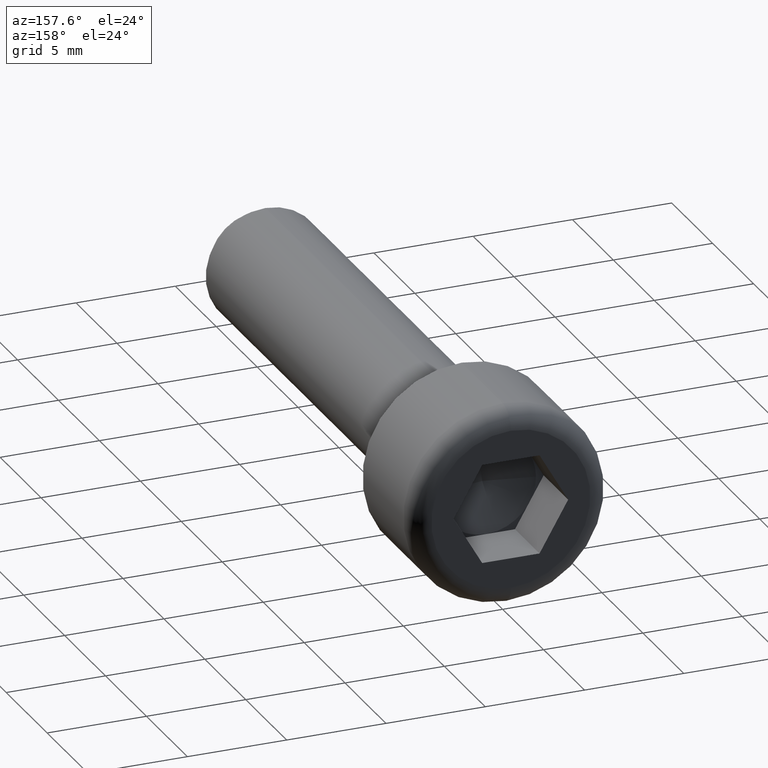
[diagram: clean part render]
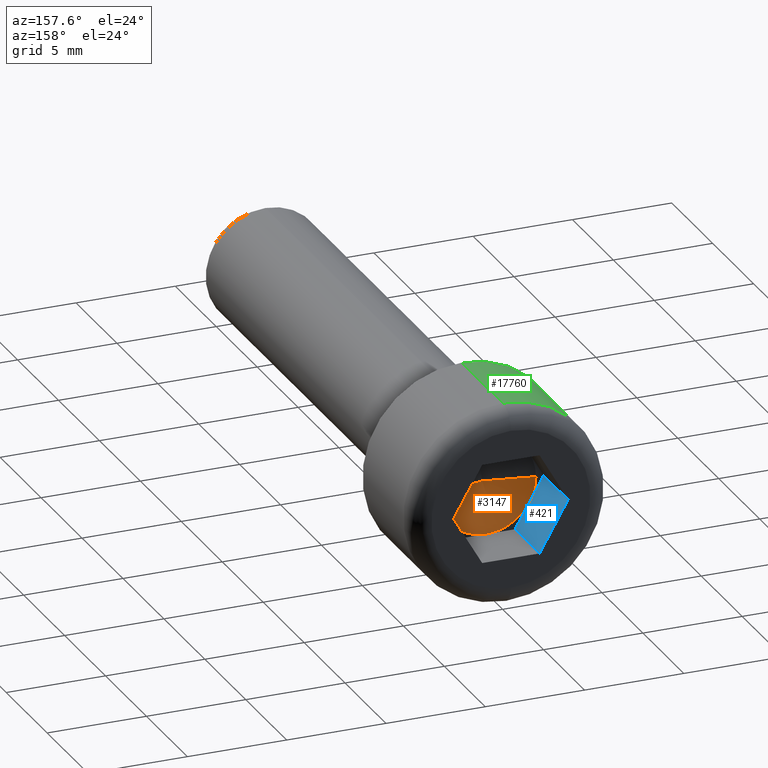
[diagram: same view with three faces highlighted in distinct colors, each labeled with its STEP entity id]
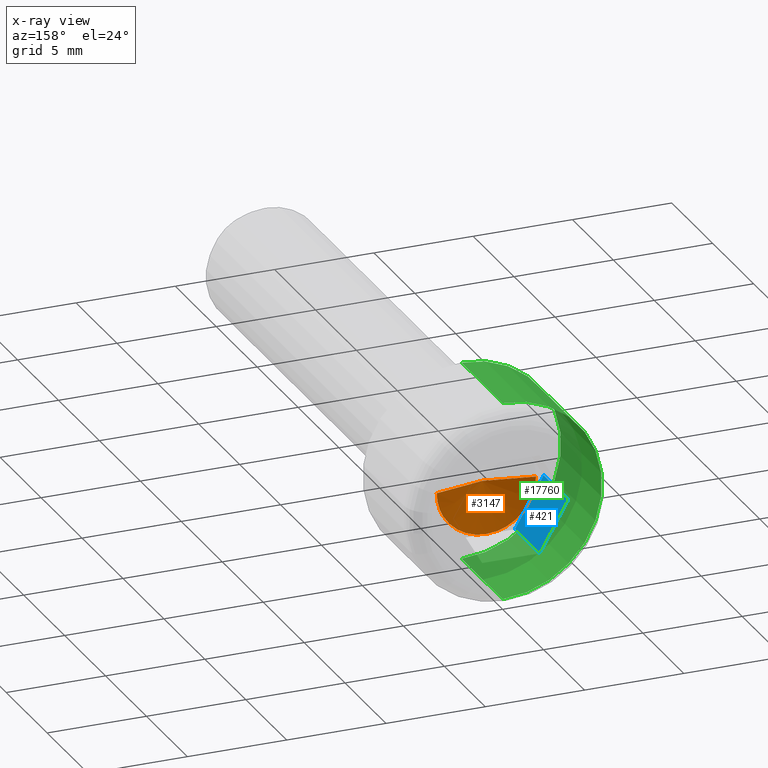
[diagram: x-ray of the same camera — body ghosted, the three highlighted faces saturated]
A machine part, auxiliary view with three faces highlighted in distinct colors.
The next image is the same camera in x-ray (body ghosted, the three faces saturated) — at least one of them is partly hidden behind the body in this view.
Their STEP definitions:

[orange] entity #3147 — the highlighted conical surface has half-angle 78.69 deg.
#66 = ORIENTED_EDGE ( 'NONE', *, *, #13444, .T. ) ;
#1119 = CARTESIAN_POINT ( 'NONE',  ( 2.165063509461096380, 3.000000000000000000, -1.250000000000000444 ) ) ;
#1279 = CARTESIAN_POINT ( 'NONE',  ( -1.224646799147352996E-13, 1002.500000000000000, 0.000000000000000000 ) ) ;
#1420 = DIRECTION ( 'NONE',  ( -1.224646799147352961E-16, 1.000000000000000000, -0.000000000000000000 ) ) ;
#2135 = VECTOR ( 'NONE', #18549, 1000.000000000000000 ) ;
#2685 = CARTESIAN_POINT ( 'NONE',  ( 0.000000000000000000, 2.500000000000000000, 0.000000000000000000 ) ) ;
#2818 = CARTESIAN_POINT ( 'NONE',  ( -4.368109896416574305E-16, 2.999999999999999556, -2.500000000000000000 ) ) ;
#3147 = ADVANCED_FACE ( 'NONE', ( #15766 ), #17775, .F. ) ;
#3183 = DIRECTION ( 'NONE',  ( -1.000000000000000000, -1.734723475976807094E-16, 0.000000000000000000 ) ) ;
#3557 = ORIENTED_EDGE ( 'NONE', *, *, #3835, .T. ) ;
#3678 = CARTESIAN_POINT ( 'NONE',  ( -2.165063509461097713, 2.999999999999999112, -1.250000000000000444 ) ) ;
#3835 = EDGE_CURVE ( 'NONE', #12542, #17595, #4035, .T. ) ;
#4035 = CIRCLE ( 'NONE', #4114, 2.500000000000000000 ) ;
#4114 = AXIS2_PLACEMENT_3D ( 'NONE', #10122, #1420, #7097 ) ;
#4938 = CARTESIAN_POINT ( 'NONE',  ( -2.500000000000001332, 2.999999999999999112, 0.000000000000000000 ) ) ;
#5240 = VERTEX_POINT ( 'NONE', #10659 ) ;
#6123 = AXIS2_PLACEMENT_3D ( 'NONE', #10551, #11952, #6132 ) ;
#6132 = DIRECTION ( 'NONE',  ( -1.000000000000000000, -1.734723475976807094E-16, 0.000000000000000000 ) ) ;
#6299 = ORIENTED_EDGE ( 'NONE', *, *, #10075, .F. ) ;
#7097 = DIRECTION ( 'NONE',  ( -1.000000000000000000, -1.734723475976807094E-16, 0.000000000000000000 ) ) ;
#7351 = ORIENTED_EDGE ( 'NONE', *, *, #11517, .T. ) ;
#7576 = VERTEX_POINT ( 'NONE', #2818 ) ;
#7799 = ORIENTED_EDGE ( 'NONE', *, *, #11990, .T. ) ;
#8893 = DIRECTION ( 'NONE',  ( -1.000000000000000000, -1.734723475976807094E-16, 0.000000000000000000 ) ) ;
#8941 = CARTESIAN_POINT ( 'NONE',  ( -6.123233995736761105E-17, 2.999999999999999556, 0.000000000000000000 ) ) ;
#9187 = VERTEX_POINT ( 'NONE', #4938 ) ;
#9872 = CIRCLE ( 'NONE', #6123, 2.500000000000000000 ) ;
#10043 = DIRECTION ( 'NONE',  ( -1.000000000000000000, -1.332267629550186074E-16, 0.000000000000000000 ) ) ;
#10061 = CIRCLE ( 'NONE', #15973, 2.500000000000000000 ) ;
#10075 = EDGE_CURVE ( 'NONE', #5240, #9187, #18127, .T. ) ;
#10076 = EDGE_LOOP ( 'NONE', ( #6299, #66, #3557, #11514, #7799, #7351 ) ) ;
#10122 = CARTESIAN_POINT ( 'NONE',  ( -6.123233995736761105E-17, 2.999999999999999556, 0.000000000000000000 ) ) ;
#10551 = CARTESIAN_POINT ( 'NONE',  ( -6.123233995736761105E-17, 2.999999999999999556, 0.000000000000000000 ) ) ;
#10659 = CARTESIAN_POINT ( 'NONE',  ( 0.000000000000000000, 2.500000000000000000, 0.000000000000000000 ) ) ;
#11514 = ORIENTED_EDGE ( 'NONE', *, *, #13341, .T. ) ;
#11517 = EDGE_CURVE ( 'NONE', #13595, #9187, #10061, .T. ) ;
#11739 = DIRECTION ( 'NONE',  ( -1.224646799147352961E-16, 1.000000000000000000, -0.000000000000000000 ) ) ;
#11952 = DIRECTION ( 'NONE',  ( -1.224646799147352961E-16, 1.000000000000000000, -0.000000000000000000 ) ) ;
#11990 = EDGE_CURVE ( 'NONE', #7576, #13595, #17343, .T. ) ;
#12032 = DIRECTION ( 'NONE',  ( -1.224646799147352961E-16, 1.000000000000000000, -0.000000000000000000 ) ) ;
#12390 = AXIS2_PLACEMENT_3D ( 'NONE', #8941, #12032, #3183 ) ;
#12542 = VERTEX_POINT ( 'NONE', #17172 ) ;
#13341 = EDGE_CURVE ( 'NONE', #17595, #7576, #9872, .T. ) ;
#13399 = CARTESIAN_POINT ( 'NONE',  ( 0.000000000000000000, 2.500000000000000000, 0.000000000000000000 ) ) ;
#13444 = EDGE_CURVE ( 'NONE', #5240, #12542, #14140, .T. ) ;
#13595 = VERTEX_POINT ( 'NONE', #3678 ) ;
#14140 = LINE ( 'NONE', #13399, #15009 ) ;
#15009 = VECTOR ( 'NONE', #17440, 1000.000000000000000 ) ;
#15766 = FACE_OUTER_BOUND ( 'NONE', #10076, .T. ) ;
#15973 = AXIS2_PLACEMENT_3D ( 'NONE', #17488, #11739, #8893 ) ;
#17172 = CARTESIAN_POINT ( 'NONE',  ( 2.500000000000001332, 3.000000000000000000, 3.061616997868384620E-16 ) ) ;
#17185 = DIRECTION ( 'NONE',  ( -1.224646799147352961E-16, 1.000000000000000000, -0.000000000000000000 ) ) ;
#17343 = CIRCLE ( 'NONE', #12390, 2.500000000000000000 ) ;
#17440 = DIRECTION ( 'NONE',  ( 0.9805806756909202226, 0.1961161351381839058, 1.200864985790634159E-16 ) ) ;
#17488 = CARTESIAN_POINT ( 'NONE',  ( -6.123233995736761105E-17, 2.999999999999999556, 0.000000000000000000 ) ) ;
#17595 = VERTEX_POINT ( 'NONE', #1119 ) ;
#17775 = CONICAL_SURFACE ( 'NONE', #18331, 5000.000000000006366, 1.373400766945016116 ) ;
#18127 = LINE ( 'NONE', #2685, #2135 ) ;
#18331 = AXIS2_PLACEMENT_3D ( 'NONE', #1279, #17185, #10043 ) ;
#18549 = DIRECTION ( 'NONE',  ( -0.9805806756909202226, 0.1961161351381836837, 0.000000000000000000 ) ) ;

[blue] entity #421 — the highlighted planar face has unit normal (-0.866, 0, -0.5).
#269 = EDGE_CURVE ( 'NONE', #15814, #13543, #11811, .T. ) ;
#421 = ADVANCED_FACE ( 'NONE', ( #11570 ), #5483, .F. ) ;
#667 = VECTOR ( 'NONE', #15610, 1000.000000000000000 ) ;
#1666 = EDGE_CURVE ( 'NONE', #13595, #5684, #13994, .T. ) ;
#1789 = CARTESIAN_POINT ( 'NONE',  ( -1.443375672974064772, 3.000000000000000000, -2.500000000000000000 ) ) ;
#2614 = CARTESIAN_POINT ( 'NONE',  ( -1.443375672974064772, 3.000000000000000000, -2.500000000000000000 ) ) ;
#3009 = DIRECTION ( 'NONE',  ( -0.5000000000000001110, 0.000000000000000000, 0.8660254037844387076 ) ) ;
#3489 = EDGE_CURVE ( 'NONE', #6595, #15814, #15070, .T. ) ;
#3678 = CARTESIAN_POINT ( 'NONE',  ( -2.165063509461097713, 2.999999999999999112, -1.250000000000000444 ) ) ;
#4222 = VECTOR ( 'NONE', #3009, 999.9999999999998863 ) ;
#4326 = CARTESIAN_POINT ( 'NONE',  ( -1.443375672974064772, 3.000000000000000000, -2.500000000000000000 ) ) ;
#4537 = ORIENTED_EDGE ( 'NONE', *, *, #269, .T. ) ;
#4548 = ORIENTED_EDGE ( 'NONE', *, *, #1666, .F. ) ;
#5417 = CARTESIAN_POINT ( 'NONE',  ( -1.443375672974064772, 3.000000000000000000, -2.500000000000000000 ) ) ;
#5483 = PLANE ( 'NONE',  #12208 ) ;
#5684 = VERTEX_POINT ( 'NONE', #16114 ) ;
#5776 = CARTESIAN_POINT ( 'NONE',  ( -1.443375672974064772, 3.000000000000000000, -2.500000000000000000 ) ) ;
#6165 = EDGE_CURVE ( 'NONE', #5684, #13543, #8328, .T. ) ;
#6595 = VERTEX_POINT ( 'NONE', #5776 ) ;
#7620 = EDGE_CURVE ( 'NONE', #6595, #13595, #14822, .T. ) ;
#8328 = LINE ( 'NONE', #18626, #667 ) ;
#8504 = DIRECTION ( 'NONE',  ( -0.000000000000000000, 1.000000000000000000, -0.000000000000000000 ) ) ;
#8929 = DIRECTION ( 'NONE',  ( -0.5000000000000001110, 0.000000000000000000, 0.8660254037844387076 ) ) ;
#9143 = ORIENTED_EDGE ( 'NONE', *, *, #3489, .T. ) ;
#9294 = DIRECTION ( 'NONE',  ( -0.5000000000000001110, 0.000000000000000000, 0.8660254037844387076 ) ) ;
#10804 = CARTESIAN_POINT ( 'NONE',  ( -1.443375672974064772, 6.000000000000000000, -2.500000000000000000 ) ) ;
#11518 = VECTOR ( 'NONE', #8504, 1000.000000000000000 ) ;
#11570 = FACE_OUTER_BOUND ( 'NONE', #15303, .T. ) ;
#11811 = LINE ( 'NONE', #10804, #15806 ) ;
#11901 = ORIENTED_EDGE ( 'NONE', *, *, #7620, .F. ) ;
#12208 = AXIS2_PLACEMENT_3D ( 'NONE', #5417, #18244, #13936 ) ;
#12209 = VECTOR ( 'NONE', #8929, 999.9999999999998863 ) ;
#13543 = VERTEX_POINT ( 'NONE', #17795 ) ;
#13595 = VERTEX_POINT ( 'NONE', #3678 ) ;
#13936 = DIRECTION ( 'NONE',  ( -0.5000000000000000000, 0.000000000000000000, 0.8660254037844385966 ) ) ;
#13994 = LINE ( 'NONE', #1789, #12209 ) ;
#14822 = LINE ( 'NONE', #4326, #4222 ) ;
#15070 = LINE ( 'NONE', #2614, #11518 ) ;
#15303 = EDGE_LOOP ( 'NONE', ( #4537, #16291, #4548, #11901, #9143 ) ) ;
#15610 = DIRECTION ( 'NONE',  ( -0.000000000000000000, 1.000000000000000000, -0.000000000000000000 ) ) ;
#15806 = VECTOR ( 'NONE', #9294, 999.9999999999998863 ) ;
#15814 = VERTEX_POINT ( 'NONE', #18376 ) ;
#16114 = CARTESIAN_POINT ( 'NONE',  ( -2.886751345948129099, 3.000000000000000000, -4.252953893243341464E-16 ) ) ;
#16291 = ORIENTED_EDGE ( 'NONE', *, *, #6165, .F. ) ;
#17795 = CARTESIAN_POINT ( 'NONE',  ( -2.886751345948129099, 6.000000000000000000, -4.252953893243341464E-16 ) ) ;
#18244 = DIRECTION ( 'NONE',  ( -0.8660254037844387076, 0.000000000000000000, -0.5000000000000001110 ) ) ;
#18376 = CARTESIAN_POINT ( 'NONE',  ( -1.443375672974064772, 6.000000000000000000, -2.500000000000000000 ) ) ;
#18626 = CARTESIAN_POINT ( 'NONE',  ( -2.886751345948129099, 3.000000000000000000, -4.252953893243341464E-16 ) ) ;

[green] entity #17760 — the highlighted cylindrical surface (partial cylindrical patch) has radius 5 mm, axis along (-0, -1, -0).
#61 = CARTESIAN_POINT ( 'NONE',  ( 0.000000000000000000, 5.000000000000000000, -5.000000000000000000 ) ) ;
#255 = DIRECTION ( 'NONE',  ( -0.000000000000000000, -1.000000000000000000, -0.000000000000000000 ) ) ;
#603 = CIRCLE ( 'NONE', #13831, 5.000000000000000000 ) ;
#968 = VERTEX_POINT ( 'NONE', #3137 ) ;
#1182 = ORIENTED_EDGE ( 'NONE', *, *, #17480, .F. ) ;
#1533 = LINE ( 'NONE', #11781, #10110 ) ;
#2541 = DIRECTION ( 'NONE',  ( -0.000000000000000000, -1.000000000000000000, -0.000000000000000000 ) ) ;
#3137 = CARTESIAN_POINT ( 'NONE',  ( 6.123233995736766282E-16, 5.000000000000000000, 5.000000000000000000 ) ) ;
#5060 = LINE ( 'NONE', #13962, #14323 ) ;
#5402 = VERTEX_POINT ( 'NONE', #61 ) ;
#6273 = CIRCLE ( 'NONE', #8019, 5.000000000000000000 ) ;
#6861 = AXIS2_PLACEMENT_3D ( 'NONE', #10874, #15002, #13484 ) ;
#7595 = ORIENTED_EDGE ( 'NONE', *, *, #7745, .T. ) ;
#7745 = EDGE_CURVE ( 'NONE', #968, #5402, #6273, .T. ) ;
#7884 = DIRECTION ( 'NONE',  ( 0.000000000000000000, 1.000000000000000000, 0.000000000000000000 ) ) ;
#8019 = AXIS2_PLACEMENT_3D ( 'NONE', #8897, #255, #9026 ) ;
#8540 = CARTESIAN_POINT ( 'NONE',  ( 6.123233995736766282E-16, 0.000000000000000000, 5.000000000000000000 ) ) ;
#8897 = CARTESIAN_POINT ( 'NONE',  ( 0.000000000000000000, 5.000000000000000000, 0.000000000000000000 ) ) ;
#9026 = DIRECTION ( 'NONE',  ( 0.000000000000000000, 0.000000000000000000, 1.000000000000000000 ) ) ;
#10056 = FACE_OUTER_BOUND ( 'NONE', #18573, .T. ) ;
#10110 = VECTOR ( 'NONE', #16315, 1000.000000000000000 ) ;
#10715 = CARTESIAN_POINT ( 'NONE',  ( 0.000000000000000000, 0.000000000000000000, -5.000000000000000000 ) ) ;
#10874 = CARTESIAN_POINT ( 'NONE',  ( 0.000000000000000000, 6.000000000000000000, 0.000000000000000000 ) ) ;
#11338 = ORIENTED_EDGE ( 'NONE', *, *, #13062, .T. ) ;
#11781 = CARTESIAN_POINT ( 'NONE',  ( 0.000000000000000000, 6.000000000000000000, -5.000000000000000000 ) ) ;
#13062 = EDGE_CURVE ( 'NONE', #5402, #14894, #1533, .T. ) ;
#13484 = DIRECTION ( 'NONE',  ( 0.000000000000000000, 0.000000000000000000, -1.000000000000000000 ) ) ;
#13831 = AXIS2_PLACEMENT_3D ( 'NONE', #16645, #7884, #16409 ) ;
#13962 = CARTESIAN_POINT ( 'NONE',  ( 6.123233995736766282E-16, 6.000000000000000000, 5.000000000000000000 ) ) ;
#14323 = VECTOR ( 'NONE', #2541, 1000.000000000000000 ) ;
#14865 = EDGE_CURVE ( 'NONE', #14894, #16072, #603, .T. ) ;
#14894 = VERTEX_POINT ( 'NONE', #10715 ) ;
#15002 = DIRECTION ( 'NONE',  ( -0.000000000000000000, -1.000000000000000000, -0.000000000000000000 ) ) ;
#16072 = VERTEX_POINT ( 'NONE', #8540 ) ;
#16315 = DIRECTION ( 'NONE',  ( -0.000000000000000000, -1.000000000000000000, -0.000000000000000000 ) ) ;
#16409 = DIRECTION ( 'NONE',  ( 0.000000000000000000, 0.000000000000000000, 1.000000000000000000 ) ) ;
#16593 = ORIENTED_EDGE ( 'NONE', *, *, #14865, .T. ) ;
#16645 = CARTESIAN_POINT ( 'NONE',  ( 0.000000000000000000, 0.000000000000000000, 0.000000000000000000 ) ) ;
#17480 = EDGE_CURVE ( 'NONE', #968, #16072, #5060, .T. ) ;
#17760 = ADVANCED_FACE ( 'NONE', ( #10056 ), #18578, .T. ) ;
#18573 = EDGE_LOOP ( 'NONE', ( #1182, #7595, #11338, #16593 ) ) ;
#18578 = CYLINDRICAL_SURFACE ( 'NONE', #6861, 5.000000000000000000 ) ;